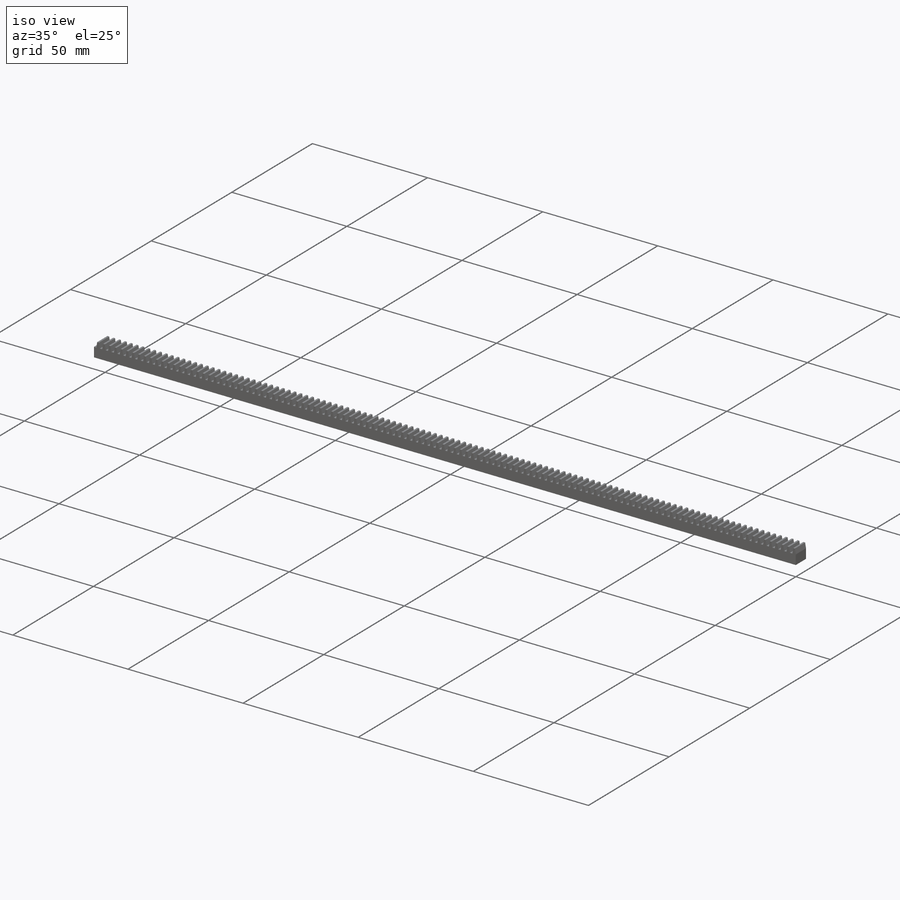
[diagram: iso view]
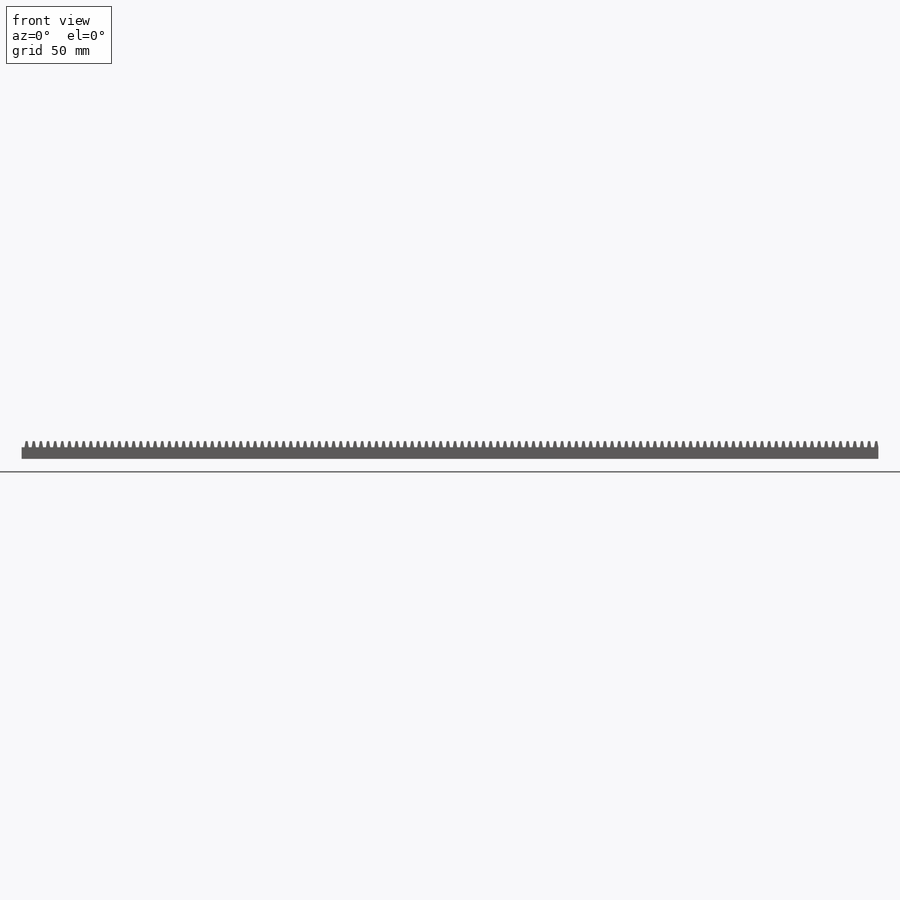
[diagram: front view]
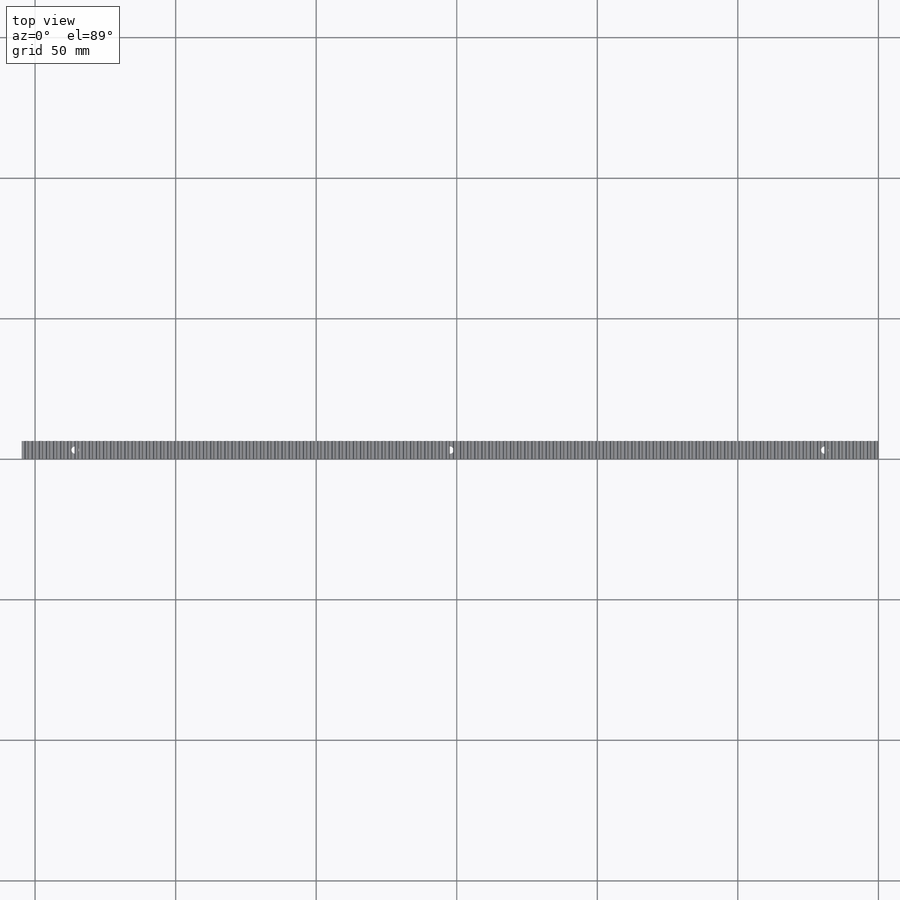
[diagram: top view]
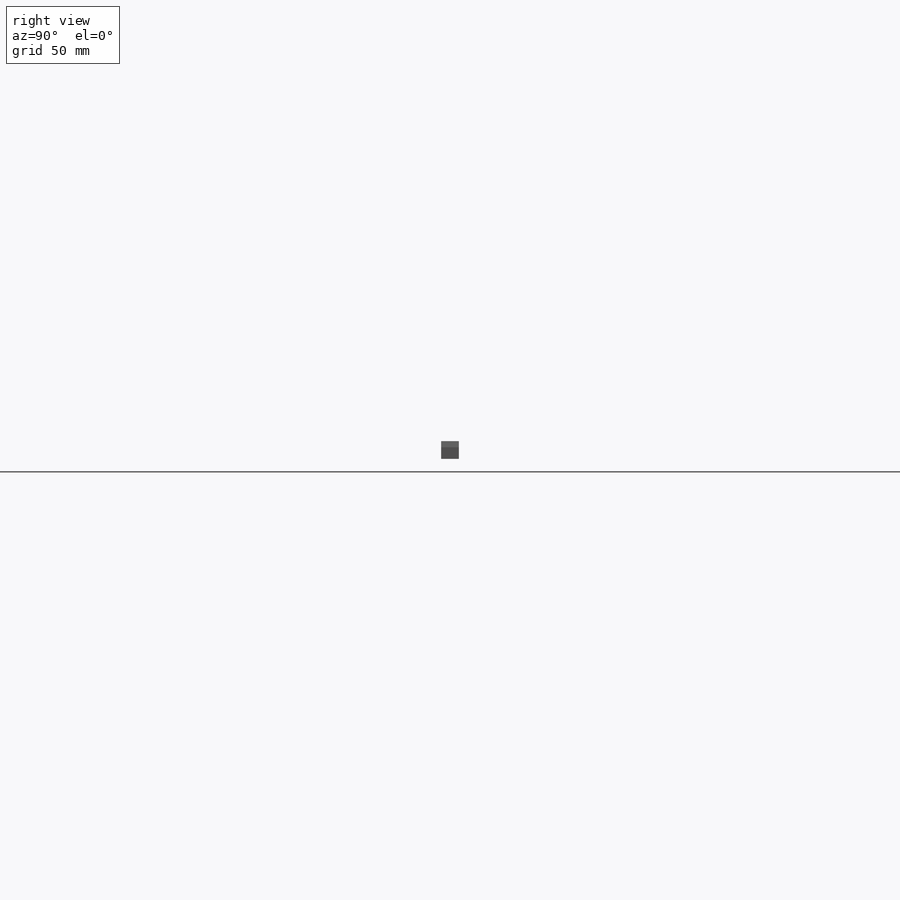
[diagram: right view]
SOLIDWORKS PART (.sldprt)
format: sldprt  version: not decoded by parser v0  size: 649,216 bytes
history: native  units: mm
features: sketch x3, thread x3, cut_extrude x2, material x1, extrude x1 (+16 scaffold rows collapsed)
feature tree (26):
  scaffold x16  (default folders/planes/origin — collapsed)
  material  "Material <not specified>"
  sketch  "Sketch1"  dims[D1=6.35mm D2=6.35mm]
  extrude  "Boss-Extrude1"  Depth=304.8mm
  sketch  "Sketch2"  dims[c1.D1=4.1402mm c1.D2=6.35mm c2.D2=10.0deg c2.D3=~18.104406mm c3.D3=80.0deg c3.D4=2.1336mm c3.D5=~18.104406mm c4.D5=80.0deg c4.D6=1.016mm c4.D7=~1.787683mm c4.D4=1.524mm c5.D7=~1.795295mm c5.D1=1.524mm c5.D3=~0.744705mm c5.D4=0.7366mm c5.D2=120.0]
  cut_extrude  "Cut-Extrude1"  Depth=304.8mm
  sketch  "Sketch3"  dims[D1=2.6924mm D2=2.6924mm D3=2.6924mm D4=19.05mm D5=152.4mm D6=285.75mm]
  cut_extrude  "Cut-Extrude2"  [1 undecoded]
  thread  "Cosmetic Thread1"  Diameter=2.7178mm  [1 undecoded]
  thread  "Cosmetic Thread2"  Diameter=2.7178mm  [1 undecoded]
  thread  "Cosmetic Thread3"  Diameter=2.7178mm  [1 undecoded]
decode coverage: 8 of 9 modeling features carry decoded parameters
note: ~ marks probable driven/reference dimensions
note: 4 parameter values undecoded
note: suppression state not decoded; provenance and decode notes live in map.json
